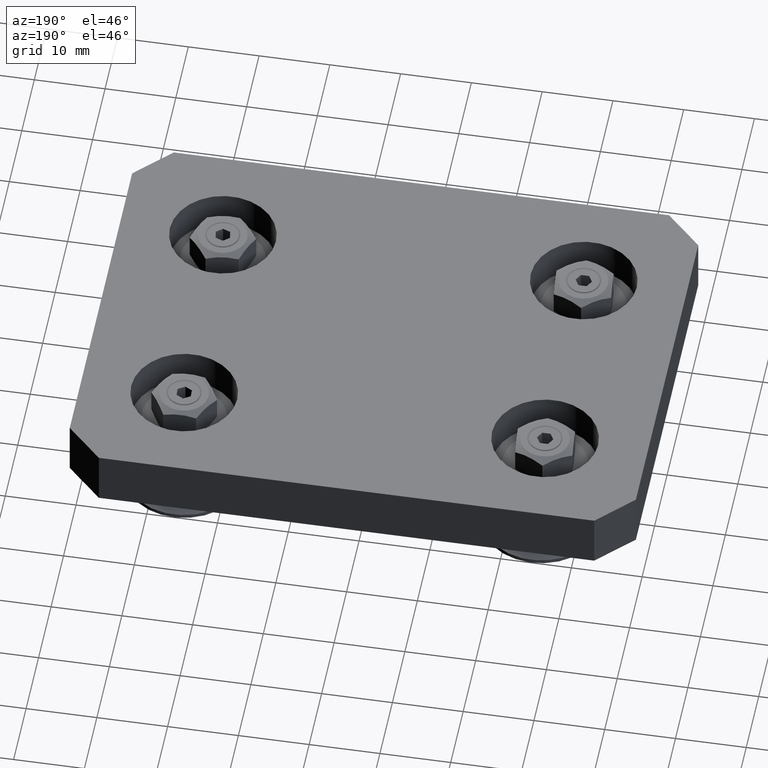
[diagram: clean part render]
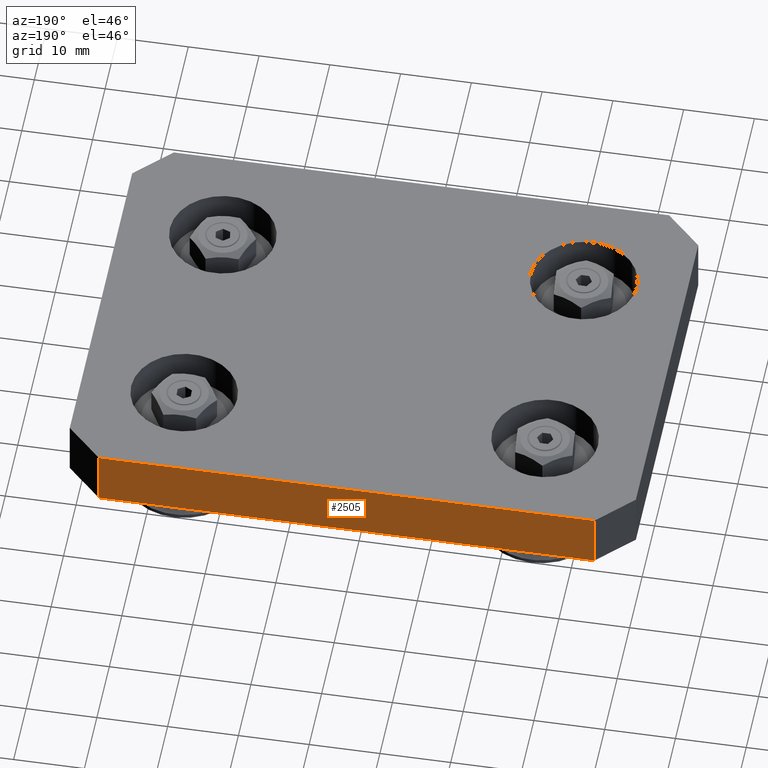
[diagram: same view with one face highlighted and labeled with its STEP entity id]
A machine part, auxiliary view. The second image highlights one B-rep face of the part: STEP entity #2505.
In plain terms, the highlighted planar face has unit normal (0, 1, 0).
Its self-contained STEP definition (entity closure, byte-faithful):
#360=FACE_OUTER_BOUND('',#527,.T.);
#527=EDGE_LOOP('',(#1763,#1764,#1765,#1766));
#691=LINE('',#4018,#899);
#698=LINE('',#4032,#906);
#704=LINE('',#4053,#912);
#719=LINE('',#4110,#927);
#899=VECTOR('',#3173,10.);
#906=VECTOR('',#3182,10.);
#912=VECTOR('',#3202,10.);
#927=VECTOR('',#3273,10.);
#1104=VERTEX_POINT('',#4011);
#1107=VERTEX_POINT('',#4016);
#1113=VERTEX_POINT('',#4030);
#1121=VERTEX_POINT('',#4051);
#1332=EDGE_CURVE('',#1107,#1104,#691,.T.);
#1339=EDGE_CURVE('',#1113,#1107,#698,.T.);
#1349=EDGE_CURVE('',#1121,#1113,#704,.T.);
#1376=EDGE_CURVE('',#1121,#1104,#719,.T.);
#1763=ORIENTED_EDGE('',*,*,#1332,.F.);
#1764=ORIENTED_EDGE('',*,*,#1339,.F.);
#1765=ORIENTED_EDGE('',*,*,#1349,.F.);
#1766=ORIENTED_EDGE('',*,*,#1376,.T.);
#2403=PLANE('',#2884);
#2505=ADVANCED_FACE('',(#360),#2403,.T.);
#2884=AXIS2_PLACEMENT_3D('',#4109,#3271,#3272);
#3173=DIRECTION('',(0.,0.,1.));
#3182=DIRECTION('',(1.,0.,0.));
#3202=DIRECTION('',(0.,0.,-1.));
#3271=DIRECTION('center_axis',(0.,1.,0.));
#3272=DIRECTION('ref_axis',(0.,0.,1.));
#3273=DIRECTION('',(1.,0.,0.));
#4011=CARTESIAN_POINT('',(35.,30.,8.));
#4016=CARTESIAN_POINT('',(35.,30.,0.));
#4018=CARTESIAN_POINT('',(35.,30.,0.));
#4030=CARTESIAN_POINT('',(-35.,30.,0.));
#4032=CARTESIAN_POINT('',(-40.,30.,0.));
#4051=CARTESIAN_POINT('',(-35.,30.,8.));
#4053=CARTESIAN_POINT('',(-35.,30.,0.));
#4109=CARTESIAN_POINT('Origin',(-40.,30.,0.));
#4110=CARTESIAN_POINT('',(-40.,30.,8.));